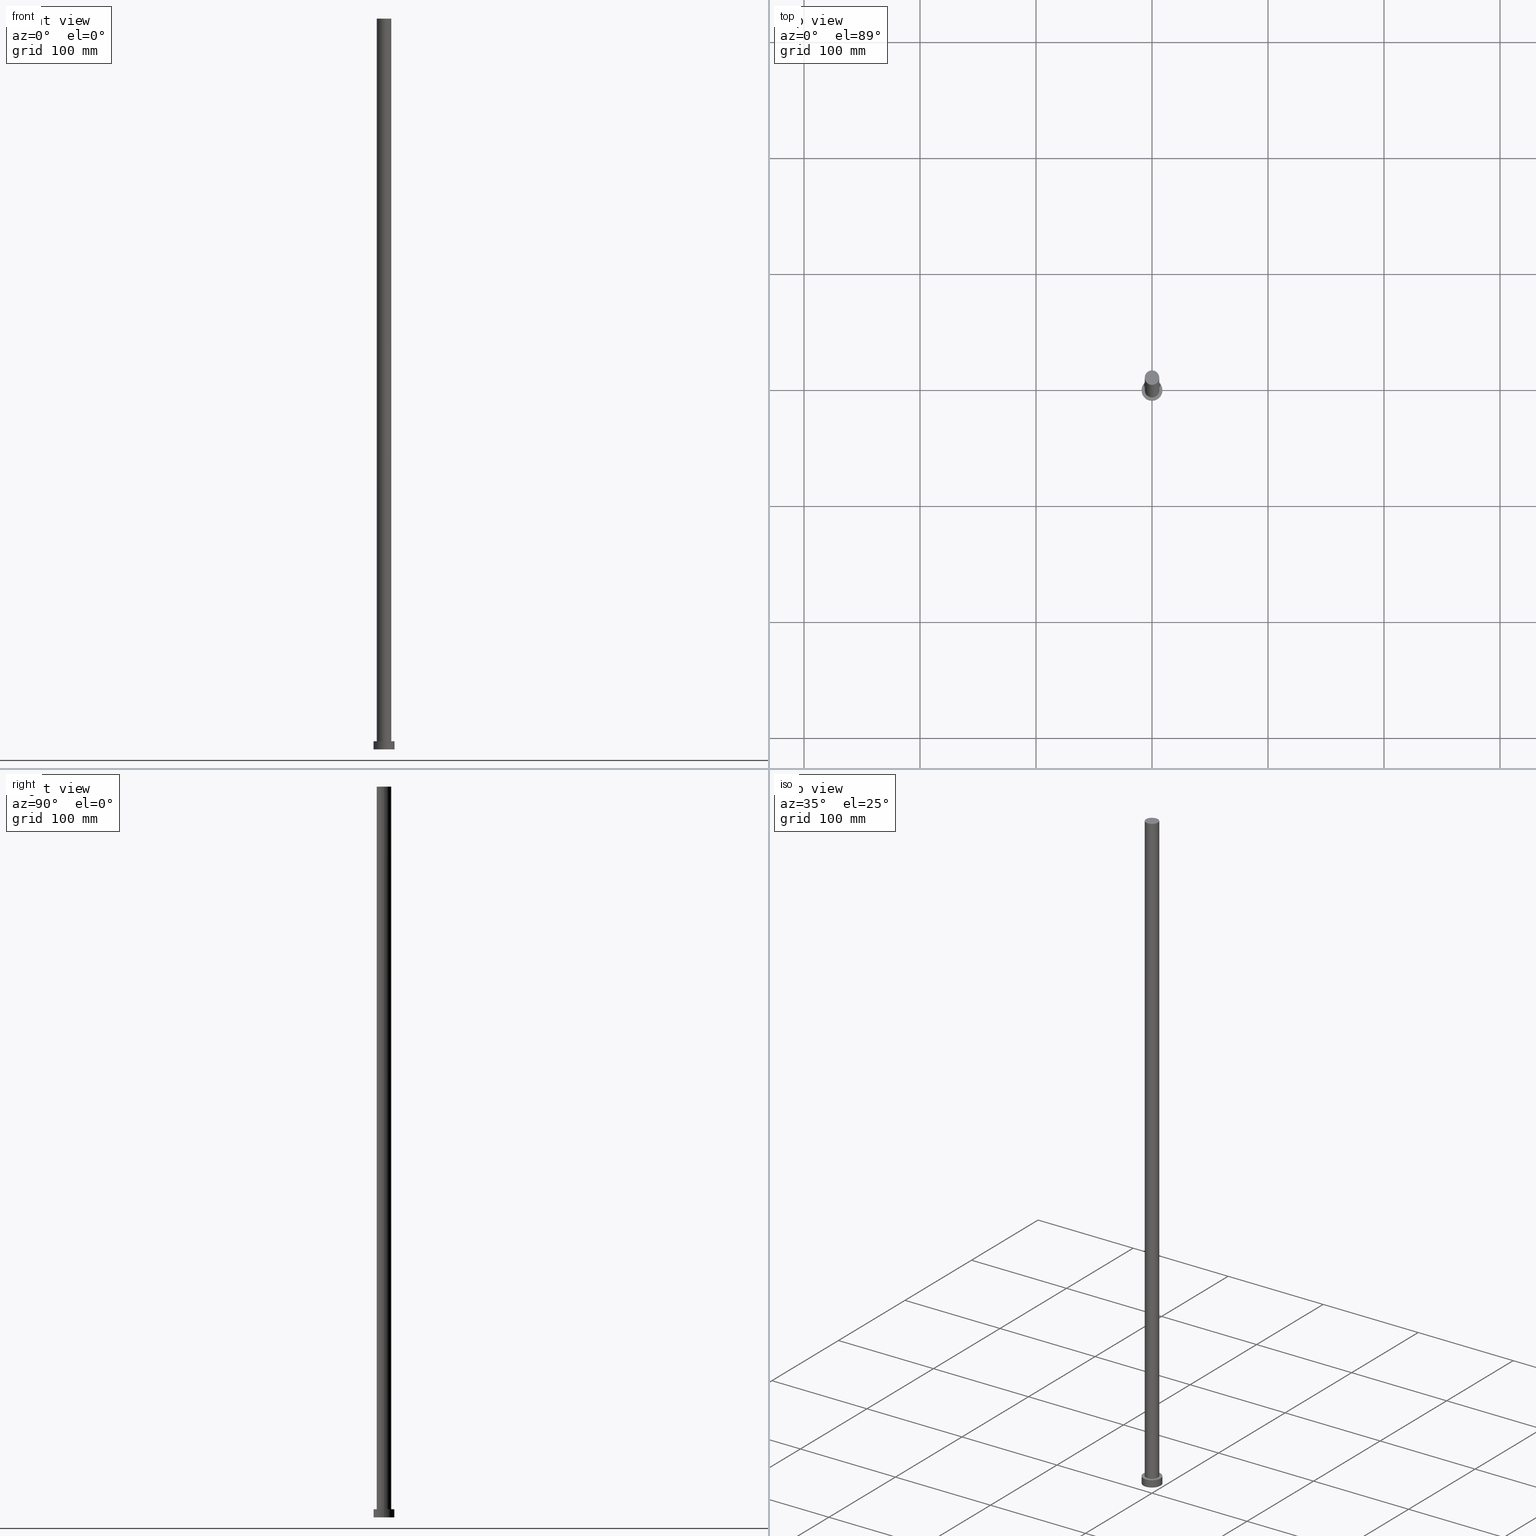
[diagram: canonical four-view strip — front | top / right | iso, engineering-drawing reading convention]
A machine part, canonical four-view strip (front | top / right | iso — engineering-drawing reading convention). The complete STEP part file that produces these views, byte-faithful:
ISO-10303-21;
HEADER;
FILE_DESCRIPTION (( 'STEP AP203' ),
    '1' );
FILE_NAME ('9008.STEP',
    '2023-02-12T10:54:20',
    ( '' ),
    ( '' ),
    'SwSTEP 2.0',
    'SolidWorks 2019',
    '' );
FILE_SCHEMA (( 'CONFIG_CONTROL_DESIGN' ));
ENDSEC;

DATA;
#1 = CIRCLE ( 'NONE', #61, 9.000000000000000000 ) ;
#2 = PERSON_AND_ORGANIZATION ( #5, #167 ) ;
#3 = FACE_OUTER_BOUND ( 'NONE', #75, .T. ) ;
#4 = EDGE_CURVE ( 'NONE', #136, #237, #130, .T. ) ;
#5 = PERSON ( 'NEUR�EN�', 'NEUR�EN�', 'NEUR�EN�', ('NEUR�EN�'), ('NEUR�EN�'), ('NEUR�EN�') ) ;
#6 = FACE_OUTER_BOUND ( 'NONE', #54, .T. ) ;
#7 = PRODUCT ( '9008', '9008', '', ( #38 ) ) ;
#8 = ORIENTED_EDGE ( 'NONE', *, *, #49, .T. ) ;
#9 = CC_DESIGN_APPROVAL ( #57, ( #186 ) ) ;
#10 = CARTESIAN_POINT ( 'NONE',  ( 0.000000000000000000, 0.000000000000000000, 630.0000000000000000 ) ) ;
#11 = ORIENTED_EDGE ( 'NONE', *, *, #185, .F. ) ;
#12 = PERSON_AND_ORGANIZATION ( #5, #167 ) ;
#13 = VERTEX_POINT ( 'NONE', #249 ) ;
#14 = ORIENTED_EDGE ( 'NONE', *, *, #251, .T. ) ;
#15 = APPLICATION_PROTOCOL_DEFINITION ( 'international standard', 'config_control_design', 1994, #85 ) ;
#16 = EDGE_CURVE ( 'NONE', #80, #99, #34, .T. ) ;
#17 = DIRECTION ( 'NONE',  ( 1.000000000000000000, 0.000000000000000000, 0.000000000000000000 ) ) ;
#18 = ADVANCED_BREP_SHAPE_REPRESENTATION ( '9008', ( #220, #154 ), #236 ) ;
#19 = APPROVAL_DATE_TIME ( #147, #57 ) ;
#20 = CARTESIAN_POINT ( 'NONE',  ( 0.000000000000000000, 0.000000000000000000, 0.000000000000000000 ) ) ;
#21 = CIRCLE ( 'NONE', #193, 6.250000000000000000 ) ;
#22 = PRODUCT_DEFINITION_SHAPE ( 'NONE', 'NONE',  #244 ) ;
#23 = PERSON_AND_ORGANIZATION ( #5, #167 ) ;
#24 = COORDINATED_UNIVERSAL_TIME_OFFSET ( 1, 0, .AHEAD. ) ;
#25 = DIRECTION ( 'NONE',  ( -0.000000000000000000, -0.000000000000000000, -1.000000000000000000 ) ) ;
#26 = UNCERTAINTY_MEASURE_WITH_UNIT (LENGTH_MEASURE( 1.000000000000000082E-05 ), #189, 'distance_accuracy_value', 'NONE');
#27 = DATE_TIME_ROLE ( 'classification_date' ) ;
#28 = AXIS2_PLACEMENT_3D ( 'NONE', #123, #111, #245 ) ;
#29 = DESIGN_CONTEXT ( 'detailed design', #85, 'design' ) ;
#30 = CC_DESIGN_PERSON_AND_ORGANIZATION_ASSIGNMENT ( #23, #145, ( #244 ) ) ;
#31 = AXIS2_PLACEMENT_3D ( 'NONE', #20, #137, #252 ) ;
#32 = CYLINDRICAL_SURFACE ( 'NONE', #73, 9.000000000000000000 ) ;
#33 = CARTESIAN_POINT ( 'NONE',  ( 0.000000000000000000, 0.000000000000000000, 630.0000000000000000 ) ) ;
#34 = CIRCLE ( 'NONE', #166, 6.250000000000000000 ) ;
#35 = EDGE_LOOP ( 'NONE', ( #140, #116, #36, #95 ) ) ;
#36 = ORIENTED_EDGE ( 'NONE', *, *, #185, .T. ) ;
#37 = ADVANCED_FACE ( 'NONE', ( #200 ), #141, .F. ) ;
#38 = MECHANICAL_CONTEXT ( 'NONE', #69, 'mechanical' ) ;
#39 = CIRCLE ( 'NONE', #65, 9.000000000000000000 ) ;
#40 = FACE_OUTER_BOUND ( 'NONE', #195, .T. ) ;
#41 = DATE_AND_TIME ( #83, #162 ) ;
#42 = AXIS2_PLACEMENT_3D ( 'NONE', #107, #67, #110 ) ;
#43 = APPROVAL_STATUS ( 'not_yet_approved' ) ;
#44 = CARTESIAN_POINT ( 'NONE',  ( -6.250000000000000000, 0.000000000000000000, 630.0000000000000000 ) ) ;
#45 = PERSON_AND_ORGANIZATION ( #5, #167 ) ;
#46 = EDGE_CURVE ( 'NONE', #197, #13, #161, .T. ) ;
#47 = DIRECTION ( 'NONE',  ( 0.000000000000000000, 0.000000000000000000, 1.000000000000000000 ) ) ;
#48 = SECURITY_CLASSIFICATION ( '', '', #106 ) ;
#49 = EDGE_CURVE ( 'NONE', #237, #117, #39, .T. ) ;
#50 = DIRECTION ( 'NONE',  ( 1.000000000000000000, 0.000000000000000000, 0.000000000000000000 ) ) ;
#51 = CC_DESIGN_APPROVAL ( #104, ( #244 ) ) ;
#52 = DIRECTION ( 'NONE',  ( 0.000000000000000000, 0.000000000000000000, 1.000000000000000000 ) ) ;
#53 = DIRECTION ( 'NONE',  ( -0.000000000000000000, -0.000000000000000000, -1.000000000000000000 ) ) ;
#54 = EDGE_LOOP ( 'NONE', ( #173, #138 ) ) ;
#55 = CIRCLE ( 'NONE', #109, 6.250000000000000000 ) ;
#56 = ORIENTED_EDGE ( 'NONE', *, *, #68, .F. ) ;
#57 = APPROVAL ( #43, 'NEUR�EN�' ) ;
#58 = VERTEX_POINT ( 'NONE', #174 ) ;
#59 = CARTESIAN_POINT ( 'NONE',  ( 0.000000000000000000, 0.000000000000000000, 7.000000000000000000 ) ) ;
#60 = AXIS2_PLACEMENT_3D ( 'NONE', #10, #122, #101 ) ;
#61 = AXIS2_PLACEMENT_3D ( 'NONE', #150, #52, #50 ) ;
#62 = APPROVAL_STATUS ( 'not_yet_approved' ) ;
#63 = DIRECTION ( 'NONE',  ( -1.000000000000000000, 0.000000000000000000, 0.000000000000000000 ) ) ;
#64 = CALENDAR_DATE ( 2023, 12, 2 ) ;
#65 = AXIS2_PLACEMENT_3D ( 'NONE', #198, #100, #17 ) ;
#66 = DATE_AND_TIME ( #241, #228 ) ;
#67 = DIRECTION ( 'NONE',  ( -0.000000000000000000, -0.000000000000000000, -1.000000000000000000 ) ) ;
#68 = EDGE_CURVE ( 'NONE', #99, #80, #21, .T. ) ;
#69 = APPLICATION_CONTEXT ( 'configuration controlled 3d designs of mechanical parts and assemblies' ) ;
#70 = CARTESIAN_POINT ( 'NONE',  ( -9.000000000000000000, 0.000000000000000000, 7.000000000000000000 ) ) ;
#71 = SHAPE_DEFINITION_REPRESENTATION ( #22, #18 ) ;
#72 = VECTOR ( 'NONE', #144, 1000.000000000000000 ) ;
#73 = AXIS2_PLACEMENT_3D ( 'NONE', #143, #53, #113 ) ;
#74 = CYLINDRICAL_SURFACE ( 'NONE', #135, 6.250000000000000000 ) ;
#75 = EDGE_LOOP ( 'NONE', ( #192, #119, #246, #114 ) ) ;
#76 = DIRECTION ( 'NONE',  ( 1.000000000000000000, 0.000000000000000000, -0.000000000000000000 ) ) ;
#77 = PERSON_AND_ORGANIZATION_ROLE ( 'design_owner' ) ;
#78 = APPROVAL ( #108, 'NEUR�EN�' ) ;
#79 = ORIENTED_EDGE ( 'NONE', *, *, #151, .T. ) ;
#80 = VERTEX_POINT ( 'NONE', #160 ) ;
#81 = DIRECTION ( 'NONE',  ( 1.000000000000000000, 0.000000000000000000, 0.000000000000000000 ) ) ;
#82 = CARTESIAN_POINT ( 'NONE',  ( 0.000000000000000000, 0.000000000000000000, 7.000000000000000000 ) ) ;
#83 = CALENDAR_DATE ( 2023, 12, 2 ) ;
#84 = DIRECTION ( 'NONE',  ( 1.000000000000000000, 0.000000000000000000, 0.000000000000000000 ) ) ;
#85 = APPLICATION_CONTEXT ( 'configuration controlled 3d designs of mechanical parts and assemblies' ) ;
#86 = CYLINDRICAL_SURFACE ( 'NONE', #42, 6.250000000000000000 ) ;
#87 = ADVANCED_FACE ( 'NONE', ( #146 ), #32, .T. ) ;
#88 = COORDINATED_UNIVERSAL_TIME_OFFSET ( 1, 0, .AHEAD. ) ;
#89 = CALENDAR_DATE ( 2023, 12, 2 ) ;
#90 = CC_DESIGN_DATE_AND_TIME_ASSIGNMENT ( #66, #27, ( #48 ) ) ;
#91 = PLANE ( 'NONE',  #180 ) ;
#92 = DIRECTION ( 'NONE',  ( -1.000000000000000000, 0.000000000000000000, 0.000000000000000000 ) ) ;
#93 = ORIENTED_EDGE ( 'NONE', *, *, #46, .F. ) ;
#94 = APPROVAL_PERSON_ORGANIZATION ( #45, #57, #103 ) ;
#95 = ORIENTED_EDGE ( 'NONE', *, *, #16, .T. ) ;
#96 = APPLICATION_PROTOCOL_DEFINITION ( 'international standard', 'config_control_design', 1994, #69 ) ;
#97 = ORIENTED_EDGE ( 'NONE', *, *, #49, .F. ) ;
#98 = CIRCLE ( 'NONE', #217, 9.000000000000000000 ) ;
#99 = VERTEX_POINT ( 'NONE', #190 ) ;
#100 = DIRECTION ( 'NONE',  ( 0.000000000000000000, 0.000000000000000000, 1.000000000000000000 ) ) ;
#101 = DIRECTION ( 'NONE',  ( 1.000000000000000000, 0.000000000000000000, 0.000000000000000000 ) ) ;
#102 = EDGE_LOOP ( 'NONE', ( #156, #219, #8, #177 ) ) ;
#103 = APPROVAL_ROLE ( '' ) ;
#104 = APPROVAL ( #62, 'NEUR�EN�' ) ;
#105 = DIRECTION ( 'NONE',  ( 0.000000000000000000, 0.000000000000000000, 1.000000000000000000 ) ) ;
#106 = SECURITY_CLASSIFICATION_LEVEL ( 'unclassified' ) ;
#107 = CARTESIAN_POINT ( 'NONE',  ( 0.000000000000000000, 0.000000000000000000, 630.0000000000000000 ) ) ;
#108 = APPROVAL_STATUS ( 'not_yet_approved' ) ;
#109 = AXIS2_PLACEMENT_3D ( 'NONE', #240, #105, #132 ) ;
#110 = DIRECTION ( 'NONE',  ( -1.000000000000000000, 0.000000000000000000, 0.000000000000000000 ) ) ;
#111 = DIRECTION ( 'NONE',  ( 0.000000000000000000, 0.000000000000000000, 1.000000000000000000 ) ) ;
#112 = ADVANCED_FACE ( 'NONE', ( #6 ), #91, .T. ) ;
#113 = DIRECTION ( 'NONE',  ( -1.000000000000000000, 0.000000000000000000, 0.000000000000000000 ) ) ;
#114 = ORIENTED_EDGE ( 'NONE', *, *, #196, .T. ) ;
#115 = CARTESIAN_POINT ( 'NONE',  ( 9.000000000000000000, 1.102182119232617714E-15, 7.000000000000000000 ) ) ;
#116 = ORIENTED_EDGE ( 'NONE', *, *, #207, .F. ) ;
#117 = VERTEX_POINT ( 'NONE', #231 ) ;
#118 = DIRECTION ( 'NONE',  ( 1.000000000000000000, 0.000000000000000000, 0.000000000000000000 ) ) ;
#119 = ORIENTED_EDGE ( 'NONE', *, *, #251, .F. ) ;
#120 = CARTESIAN_POINT ( 'NONE',  ( 0.000000000000000000, 0.000000000000000000, 0.000000000000000000 ) ) ;
#121 = EDGE_LOOP ( 'NONE', ( #139, #97 ) ) ;
#122 = DIRECTION ( 'NONE',  ( 0.000000000000000000, 0.000000000000000000, 1.000000000000000000 ) ) ;
#123 = CARTESIAN_POINT ( 'NONE',  ( 0.000000000000000000, 0.000000000000000000, 7.000000000000000000 ) ) ;
#124 = CC_DESIGN_PERSON_AND_ORGANIZATION_ASSIGNMENT ( #183, #224, ( #186 ) ) ;
#125 = APPROVAL_PERSON_ORGANIZATION ( #12, #104, #239 ) ;
#126 = CALENDAR_DATE ( 2023, 12, 2 ) ;
#127 = CYLINDRICAL_SURFACE ( 'NONE', #209, 9.000000000000000000 ) ;
#128 = PERSON_AND_ORGANIZATION ( #5, #167 ) ;
#129 = PLANE ( 'NONE',  #28 ) ;
#130 = LINE ( 'NONE', #187, #72 ) ;
#131 = DATE_TIME_ROLE ( 'creation_date' ) ;
#132 = DIRECTION ( 'NONE',  ( 1.000000000000000000, 0.000000000000000000, 0.000000000000000000 ) ) ;
#133 = LOCAL_TIME ( 11, 54, 20.00000000000000000, #181 ) ;
#134 = CC_DESIGN_PERSON_AND_ORGANIZATION_ASSIGNMENT ( #128, #208, ( #186 ) ) ;
#135 = AXIS2_PLACEMENT_3D ( 'NONE', #191, #153, #92 ) ;
#136 = VERTEX_POINT ( 'NONE', #115 ) ;
#137 = DIRECTION ( 'NONE',  ( 0.000000000000000000, 0.000000000000000000, 1.000000000000000000 ) ) ;
#138 = ORIENTED_EDGE ( 'NONE', *, *, #46, .T. ) ;
#139 = ORIENTED_EDGE ( 'NONE', *, *, #196, .F. ) ;
#140 = ORIENTED_EDGE ( 'NONE', *, *, #151, .F. ) ;
#141 = PLANE ( 'NONE',  #31 ) ;
#142 = CC_DESIGN_PERSON_AND_ORGANIZATION_ASSIGNMENT ( #204, #164, ( #48 ) ) ;
#143 = CARTESIAN_POINT ( 'NONE',  ( 0.000000000000000000, 0.000000000000000000, 7.000000000000000000 ) ) ;
#144 = DIRECTION ( 'NONE',  ( -0.000000000000000000, -0.000000000000000000, -1.000000000000000000 ) ) ;
#145 = PERSON_AND_ORGANIZATION_ROLE ( 'creator' ) ;
#146 = FACE_OUTER_BOUND ( 'NONE', #102, .T. ) ;
#147 = DATE_AND_TIME ( #64, #133 ) ;
#148 = APPROVAL_ROLE ( '' ) ;
#149 = LINE ( 'NONE', #44, #221 ) ;
#150 = CARTESIAN_POINT ( 'NONE',  ( 0.000000000000000000, 0.000000000000000000, 7.000000000000000000 ) ) ;
#151 = EDGE_CURVE ( 'NONE', #197, #99, #223, .T. ) ;
#152 = CARTESIAN_POINT ( 'NONE',  ( 9.000000000000000000, 1.102182119232617714E-15, 0.000000000000000000 ) ) ;
#153 = DIRECTION ( 'NONE',  ( -0.000000000000000000, -0.000000000000000000, -1.000000000000000000 ) ) ;
#154 = AXIS2_PLACEMENT_3D ( 'NONE', #120, #235, #118 ) ;
#155 = EDGE_LOOP ( 'NONE', ( #93, #79, #234, #11 ) ) ;
#156 = ORIENTED_EDGE ( 'NONE', *, *, #218, .F. ) ;
#157 = CLOSED_SHELL ( 'NONE', ( #253, #87, #176, #233, #37, #229, #112 ) ) ;
#158 = ORIENTED_EDGE ( 'NONE', *, *, #16, .F. ) ;
#159 = CC_DESIGN_DATE_AND_TIME_ASSIGNMENT ( #206, #131, ( #244 ) ) ;
#160 = CARTESIAN_POINT ( 'NONE',  ( -6.250000000000000000, 0.000000000000000000, 7.000000000000000000 ) ) ;
#161 = CIRCLE ( 'NONE', #60, 6.250000000000000000 ) ;
#162 = LOCAL_TIME ( 11, 54, 20.00000000000000000, #24 ) ;
#163 = DIRECTION ( 'NONE',  ( 1.000000000000000000, 0.000000000000000000, 0.000000000000000000 ) ) ;
#164 = PERSON_AND_ORGANIZATION_ROLE ( 'classification_officer' ) ;
#165 = CARTESIAN_POINT ( 'NONE',  ( 6.250000000000000000, 7.654042494670957606E-16, 630.0000000000000000 ) ) ;
#166 = AXIS2_PLACEMENT_3D ( 'NONE', #59, #214, #238 ) ;
#167 = ORGANIZATION ( 'NEUR�EN�', 'NEUR�EN�', '' ) ;
#168 = LINE ( 'NONE', #70, #212 ) ;
#169 = DATE_AND_TIME ( #89, #203 ) ;
#170 = DIRECTION ( 'NONE',  ( -0.000000000000000000, -0.000000000000000000, -1.000000000000000000 ) ) ;
#171 = CC_DESIGN_APPROVAL ( #78, ( #48 ) ) ;
#172 = EDGE_CURVE ( 'NONE', #58, #117, #168, .T. ) ;
#173 = ORIENTED_EDGE ( 'NONE', *, *, #207, .T. ) ;
#174 = CARTESIAN_POINT ( 'NONE',  ( -9.000000000000000000, 0.000000000000000000, 7.000000000000000000 ) ) ;
#175 = PERSON_AND_ORGANIZATION ( #5, #167 ) ;
#176 = ADVANCED_FACE ( 'NONE', ( #3 ), #127, .T. ) ;
#177 = ORIENTED_EDGE ( 'NONE', *, *, #172, .F. ) ;
#178 =( NAMED_UNIT ( * ) PLANE_ANGLE_UNIT ( ) SI_UNIT ( $, .RADIAN. ) );
#179 = DIRECTION ( 'NONE',  ( -0.000000000000000000, -0.000000000000000000, -1.000000000000000000 ) ) ;
#180 = AXIS2_PLACEMENT_3D ( 'NONE', #33, #248, #76 ) ;
#181 = COORDINATED_UNIVERSAL_TIME_OFFSET ( 1, 0, .AHEAD. ) ;
#182 = DIRECTION ( 'NONE',  ( 0.000000000000000000, 0.000000000000000000, 1.000000000000000000 ) ) ;
#183 = PERSON_AND_ORGANIZATION ( #5, #167 ) ;
#184 = FACE_OUTER_BOUND ( 'NONE', #35, .T. ) ;
#185 = EDGE_CURVE ( 'NONE', #13, #80, #149, .T. ) ;
#186 = PRODUCT_DEFINITION_FORMATION_WITH_SPECIFIED_SOURCE ( 'LIBOVOLN�', '', #7, .NOT_KNOWN. ) ;
#187 = CARTESIAN_POINT ( 'NONE',  ( 9.000000000000000000, 1.102182119232617714E-15, 7.000000000000000000 ) ) ;
#188 = COORDINATED_UNIVERSAL_TIME_OFFSET ( 1, 0, .AHEAD. ) ;
#189 =( LENGTH_UNIT ( ) NAMED_UNIT ( * ) SI_UNIT ( .MILLI., .METRE. ) );
#190 = CARTESIAN_POINT ( 'NONE',  ( 6.250000000000000000, 7.654042494670957606E-16, 7.000000000000000000 ) ) ;
#191 = CARTESIAN_POINT ( 'NONE',  ( 0.000000000000000000, 0.000000000000000000, 630.0000000000000000 ) ) ;
#192 = ORIENTED_EDGE ( 'NONE', *, *, #4, .F. ) ;
#193 = AXIS2_PLACEMENT_3D ( 'NONE', #82, #199, #81 ) ;
#194 = APPROVAL_PERSON_ORGANIZATION ( #2, #78, #148 ) ;
#195 = EDGE_LOOP ( 'NONE', ( #14, #215 ) ) ;
#196 = EDGE_CURVE ( 'NONE', #117, #237, #98, .T. ) ;
#197 = VERTEX_POINT ( 'NONE', #165 ) ;
#198 = CARTESIAN_POINT ( 'NONE',  ( 0.000000000000000000, 0.000000000000000000, 0.000000000000000000 ) ) ;
#199 = DIRECTION ( 'NONE',  ( 0.000000000000000000, 0.000000000000000000, 1.000000000000000000 ) ) ;
#200 = FACE_OUTER_BOUND ( 'NONE', #121, .T. ) ;
#201 = CARTESIAN_POINT ( 'NONE',  ( 0.000000000000000000, 0.000000000000000000, 7.000000000000000000 ) ) ;
#202 = CIRCLE ( 'NONE', #247, 9.000000000000000000 ) ;
#203 = LOCAL_TIME ( 11, 54, 20.00000000000000000, #188 ) ;
#204 = PERSON_AND_ORGANIZATION ( #5, #167 ) ;
#205 = DIRECTION ( 'NONE',  ( -0.000000000000000000, -0.000000000000000000, -1.000000000000000000 ) ) ;
#206 = DATE_AND_TIME ( #126, #210 ) ;
#207 = EDGE_CURVE ( 'NONE', #13, #197, #55, .T. ) ;
#208 = PERSON_AND_ORGANIZATION_ROLE ( 'design_supplier' ) ;
#209 = AXIS2_PLACEMENT_3D ( 'NONE', #255, #170, #63 ) ;
#210 = LOCAL_TIME ( 11, 54, 20.00000000000000000, #88 ) ;
#211 = CC_DESIGN_SECURITY_CLASSIFICATION ( #48, ( #186 ) ) ;
#212 = VECTOR ( 'NONE', #25, 1000.000000000000000 ) ;
#213 = PRODUCT_RELATED_PRODUCT_CATEGORY ( 'detail', '', ( #7 ) ) ;
#214 = DIRECTION ( 'NONE',  ( 0.000000000000000000, 0.000000000000000000, 1.000000000000000000 ) ) ;
#215 = ORIENTED_EDGE ( 'NONE', *, *, #218, .T. ) ;
#216 = VECTOR ( 'NONE', #179, 1000.000000000000000 ) ;
#217 = AXIS2_PLACEMENT_3D ( 'NONE', #242, #47, #163 ) ;
#218 = EDGE_CURVE ( 'NONE', #136, #58, #202, .T. ) ;
#219 = ORIENTED_EDGE ( 'NONE', *, *, #4, .T. ) ;
#220 = MANIFOLD_SOLID_BREP ( 'P�idat vysunut�m3', #157 ) ;
#221 = VECTOR ( 'NONE', #205, 1000.000000000000000 ) ;
#222 = FACE_BOUND ( 'NONE', #232, .T. ) ;
#223 = LINE ( 'NONE', #254, #216 ) ;
#224 = PERSON_AND_ORGANIZATION_ROLE ( 'creator' ) ;
#225 = CC_DESIGN_PERSON_AND_ORGANIZATION_ASSIGNMENT ( #175, #77, ( #7 ) ) ;
#226 = COORDINATED_UNIVERSAL_TIME_OFFSET ( 1, 0, .AHEAD. ) ;
#227 = APPROVAL_DATE_TIME ( #41, #104 ) ;
#228 = LOCAL_TIME ( 11, 54, 20.00000000000000000, #226 ) ;
#229 = ADVANCED_FACE ( 'NONE', ( #184 ), #86, .T. ) ;
#230 = FACE_OUTER_BOUND ( 'NONE', #155, .T. ) ;
#231 = CARTESIAN_POINT ( 'NONE',  ( -9.000000000000000000, 0.000000000000000000, 0.000000000000000000 ) ) ;
#232 = EDGE_LOOP ( 'NONE', ( #158, #56 ) ) ;
#233 = ADVANCED_FACE ( 'NONE', ( #222, #40 ), #129, .T. ) ;
#234 = ORIENTED_EDGE ( 'NONE', *, *, #68, .T. ) ;
#235 = DIRECTION ( 'NONE',  ( 0.000000000000000000, 0.000000000000000000, 1.000000000000000000 ) ) ;
#236 =( GEOMETRIC_REPRESENTATION_CONTEXT ( 3 ) GLOBAL_UNCERTAINTY_ASSIGNED_CONTEXT ( ( #26 ) ) GLOBAL_UNIT_ASSIGNED_CONTEXT ( ( #189, #178, #250 ) ) REPRESENTATION_CONTEXT ( 'NONE', 'WORKASPACE' ) );
#237 = VERTEX_POINT ( 'NONE', #152 ) ;
#238 = DIRECTION ( 'NONE',  ( 1.000000000000000000, 0.000000000000000000, 0.000000000000000000 ) ) ;
#239 = APPROVAL_ROLE ( '' ) ;
#240 = CARTESIAN_POINT ( 'NONE',  ( 0.000000000000000000, 0.000000000000000000, 630.0000000000000000 ) ) ;
#241 = CALENDAR_DATE ( 2023, 12, 2 ) ;
#242 = CARTESIAN_POINT ( 'NONE',  ( 0.000000000000000000, 0.000000000000000000, 0.000000000000000000 ) ) ;
#243 = APPROVAL_DATE_TIME ( #169, #78 ) ;
#244 = PRODUCT_DEFINITION ( 'NEZN�M�', '', #186, #29 ) ;
#245 = DIRECTION ( 'NONE',  ( 1.000000000000000000, 0.000000000000000000, -0.000000000000000000 ) ) ;
#246 = ORIENTED_EDGE ( 'NONE', *, *, #172, .T. ) ;
#247 = AXIS2_PLACEMENT_3D ( 'NONE', #201, #182, #84 ) ;
#248 = DIRECTION ( 'NONE',  ( 0.000000000000000000, 0.000000000000000000, 1.000000000000000000 ) ) ;
#249 = CARTESIAN_POINT ( 'NONE',  ( -6.250000000000000000, 0.000000000000000000, 630.0000000000000000 ) ) ;
#250 =( NAMED_UNIT ( * ) SI_UNIT ( $, .STERADIAN. ) SOLID_ANGLE_UNIT ( ) );
#251 = EDGE_CURVE ( 'NONE', #58, #136, #1, .T. ) ;
#252 = DIRECTION ( 'NONE',  ( 1.000000000000000000, 0.000000000000000000, -0.000000000000000000 ) ) ;
#253 = ADVANCED_FACE ( 'NONE', ( #230 ), #74, .T. ) ;
#254 = CARTESIAN_POINT ( 'NONE',  ( 6.250000000000000000, 7.654042494670957606E-16, 630.0000000000000000 ) ) ;
#255 = CARTESIAN_POINT ( 'NONE',  ( 0.000000000000000000, 0.000000000000000000, 7.000000000000000000 ) ) ;
ENDSEC;
END-ISO-10303-21;
